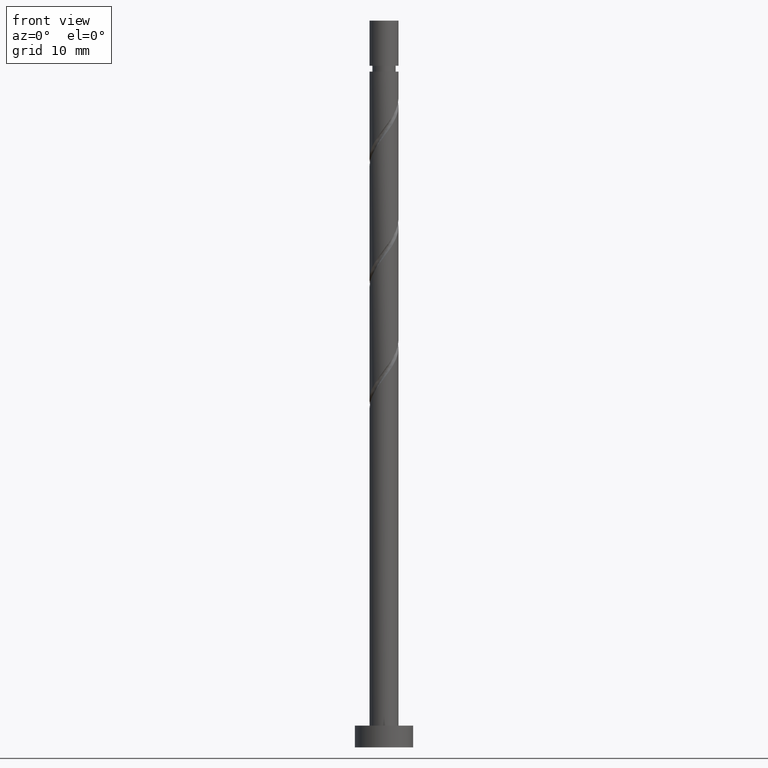
[diagram: clean part render]
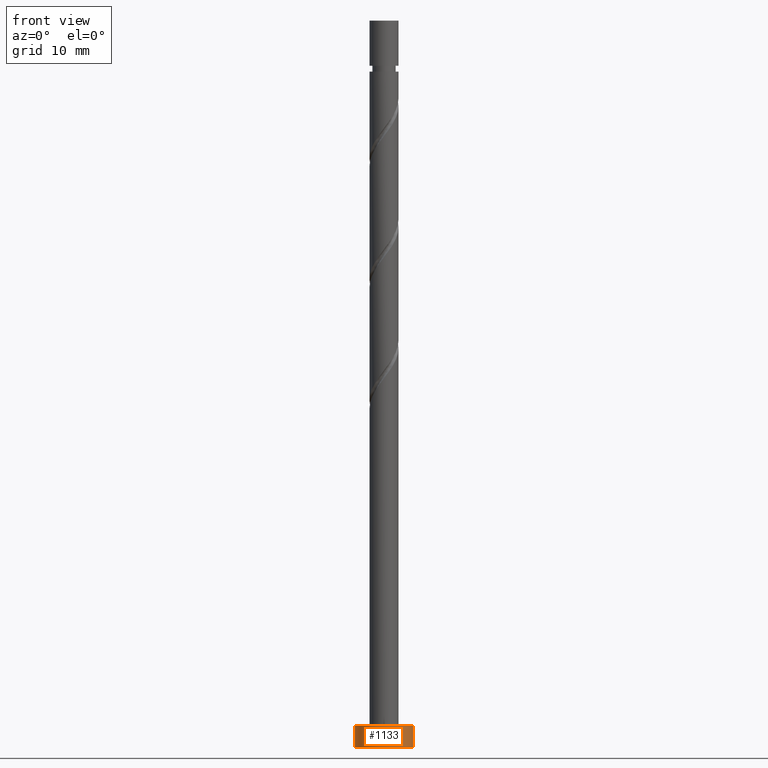
[diagram: same view with one face highlighted and labeled with its STEP entity id]
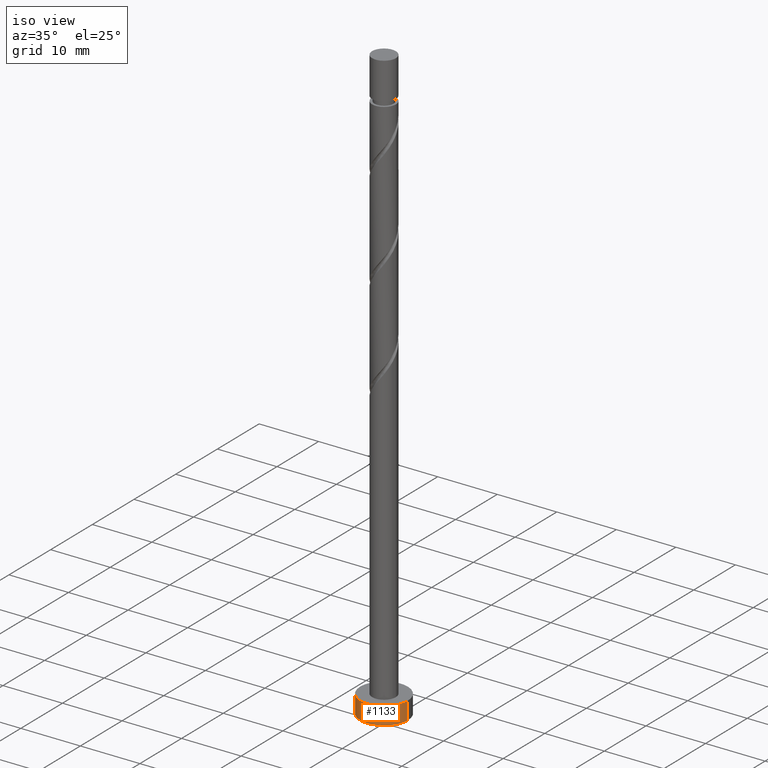
[diagram: same view with one face highlighted and labeled with its STEP entity id]
A machine part, front view. The second image highlights one B-rep face of the part: STEP entity #1133.
A second angle (iso view) of the same face is appended — the face is thin or edge-on in the first view.
In plain terms, the highlighted cylindrical surface (edge-blend (fillet) strip) has radius 4 mm, axis along (-0, -0, -1).
Its self-contained STEP definition (entity closure, byte-faithful):
#104 = CARTESIAN_POINT ( 'NONE',  ( 0.000000000000000000, 0.000000000000000000, 3.000000000000000000 ) ) ;
#254 = VERTEX_POINT ( 'NONE', #598 ) ;
#256 = AXIS2_PLACEMENT_3D ( 'NONE', #377, #1266, #265 ) ;
#265 = DIRECTION ( 'NONE',  ( -1.000000000000000000, 0.000000000000000000, 0.000000000000000000 ) ) ;
#377 = CARTESIAN_POINT ( 'NONE',  ( 0.000000000000000000, 0.000000000000000000, 3.000000000000000000 ) ) ;
#419 = AXIS2_PLACEMENT_3D ( 'NONE', #104, #535, #898 ) ;
#459 = ORIENTED_EDGE ( 'NONE', *, *, #1461, .F. ) ;
#465 = FACE_OUTER_BOUND ( 'NONE', #926, .T. ) ;
#486 = EDGE_CURVE ( 'NONE', #1360, #1250, #1136, .T. ) ;
#535 = DIRECTION ( 'NONE',  ( 0.000000000000000000, 0.000000000000000000, 1.000000000000000000 ) ) ;
#576 = ORIENTED_EDGE ( 'NONE', *, *, #1088, .T. ) ;
#598 = CARTESIAN_POINT ( 'NONE',  ( -4.000000000000000000, 0.000000000000000000, 3.000000000000000000 ) ) ;
#606 = DIRECTION ( 'NONE',  ( 1.000000000000000000, 0.000000000000000000, 0.000000000000000000 ) ) ;
#619 = CARTESIAN_POINT ( 'NONE',  ( -4.000000000000000000, 0.000000000000000000, 0.000000000000000000 ) ) ;
#735 = ORIENTED_EDGE ( 'NONE', *, *, #763, .F. ) ;
#749 = CARTESIAN_POINT ( 'NONE',  ( 4.000000000000000000, 4.898587196589412829E-16, 0.000000000000000000 ) ) ;
#763 = EDGE_CURVE ( 'NONE', #254, #978, #1347, .T. ) ;
#788 = VECTOR ( 'NONE', #1379, 1000.000000000000000 ) ;
#797 = CARTESIAN_POINT ( 'NONE',  ( 4.000000000000000000, 4.898587196589412829E-16, 3.000000000000000000 ) ) ;
#898 = DIRECTION ( 'NONE',  ( 1.000000000000000000, 0.000000000000000000, 0.000000000000000000 ) ) ;
#914 = CARTESIAN_POINT ( 'NONE',  ( 4.000000000000000000, 4.898587196589412829E-16, 3.000000000000000000 ) ) ;
#926 = EDGE_LOOP ( 'NONE', ( #459, #735, #576, #1193 ) ) ;
#953 = CYLINDRICAL_SURFACE ( 'NONE', #256, 4.000000000000000000 ) ;
#978 = VERTEX_POINT ( 'NONE', #914 ) ;
#994 = VECTOR ( 'NONE', #999, 1000.000000000000000 ) ;
#999 = DIRECTION ( 'NONE',  ( -0.000000000000000000, -0.000000000000000000, -1.000000000000000000 ) ) ;
#1088 = EDGE_CURVE ( 'NONE', #254, #1360, #1168, .T. ) ;
#1133 = ADVANCED_FACE ( 'NONE', ( #465 ), #953, .T. ) ;
#1136 = CIRCLE ( 'NONE', #1281, 4.000000000000000000 ) ;
#1156 = CARTESIAN_POINT ( 'NONE',  ( -4.000000000000000000, 0.000000000000000000, 3.000000000000000000 ) ) ;
#1168 = LINE ( 'NONE', #1156, #788 ) ;
#1193 = ORIENTED_EDGE ( 'NONE', *, *, #486, .T. ) ;
#1220 = LINE ( 'NONE', #797, #994 ) ;
#1250 = VERTEX_POINT ( 'NONE', #749 ) ;
#1266 = DIRECTION ( 'NONE',  ( -0.000000000000000000, -0.000000000000000000, -1.000000000000000000 ) ) ;
#1281 = AXIS2_PLACEMENT_3D ( 'NONE', #1294, #1287, #606 ) ;
#1287 = DIRECTION ( 'NONE',  ( 0.000000000000000000, 0.000000000000000000, 1.000000000000000000 ) ) ;
#1294 = CARTESIAN_POINT ( 'NONE',  ( 0.000000000000000000, 0.000000000000000000, 0.000000000000000000 ) ) ;
#1347 = CIRCLE ( 'NONE', #419, 4.000000000000000000 ) ;
#1360 = VERTEX_POINT ( 'NONE', #619 ) ;
#1379 = DIRECTION ( 'NONE',  ( -0.000000000000000000, -0.000000000000000000, -1.000000000000000000 ) ) ;
#1461 = EDGE_CURVE ( 'NONE', #978, #1250, #1220, .T. ) ;